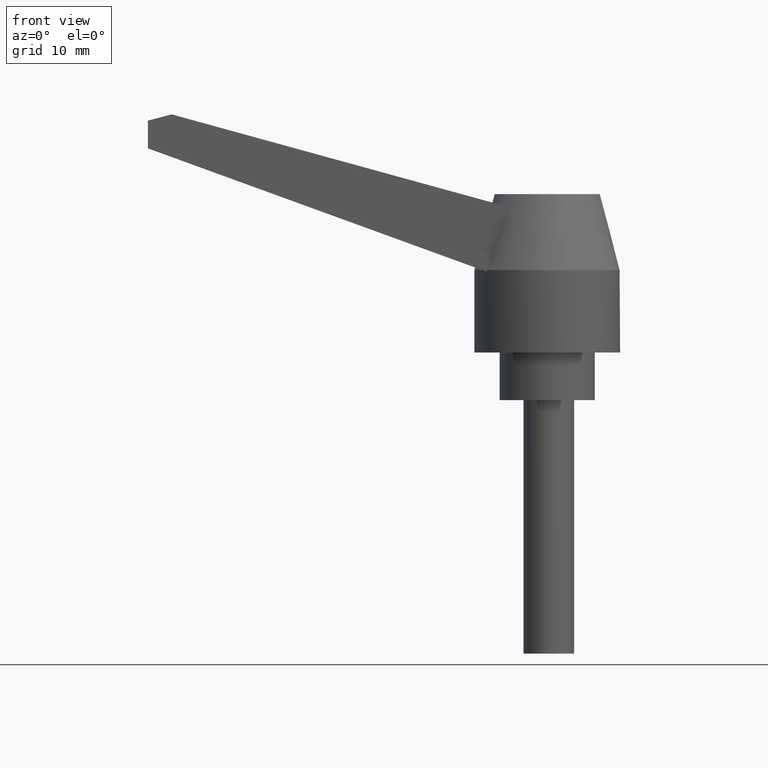
[diagram: clean part render]
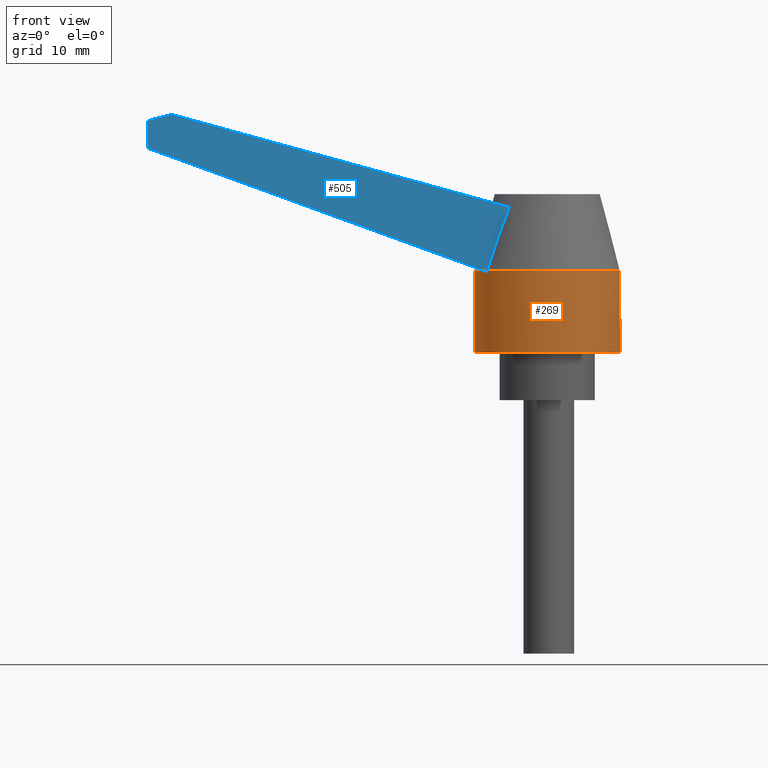
[diagram: same view with the hole feature highlighted: cylindrical wall and planar end face, labeled with their STEP entity ids]
A machine part, front view. The highlighted faces form one hole feature of diameter 23 mm: the cylindrical wall (entity #269, orange) and its adjacent planar end face (entity #505, blue) — they share a circular edge in the B-rep.
Wall:
#167=CARTESIAN_POINT('',(-11.500000000000011,-4.289359E-016,7.500000000000028));
#168=VERTEX_POINT('',#167);
#169=CARTESIAN_POINT('',(11.500000000000000,1.735999E-015,7.499999999999976));
#170=VERTEX_POINT('',#169);
#171=CARTESIAN_POINT('',(0.0,4.592425E-016,7.500000000000000));
#172=DIRECTION('',(-2.068442E-015,-1.072679E-015,-1.0));
#173=DIRECTION('',(-1.0,-1.110223E-016,2.068442E-015));
#174=AXIS2_PLACEMENT_3D('',#171,#172,#173);
#175=CIRCLE('',#174,11.500000000000000);
#176=EDGE_CURVE('',#168,#170,#175,.T.);
#178=CARTESIAN_POINT('',(0.0,4.592425E-016,7.500000000000000));
#179=DIRECTION('',(-2.068442E-015,-1.072679E-015,-1.0));
#180=DIRECTION('',(-1.0,-1.110223E-016,2.068442E-015));
#181=AXIS2_PLACEMENT_3D('',#178,#179,#180);
#182=CIRCLE('',#181,11.500000000000000);
#183=EDGE_CURVE('',#170,#168,#182,.T.);
#192=CARTESIAN_POINT('',(0.0,4.592425E-016,7.500000000000000));
#193=DIRECTION('',(-2.068442E-015,-1.072679E-015,-1.0));
#194=DIRECTION('',(-1.0,-1.110223E-016,2.068442E-015));
#195=AXIS2_PLACEMENT_3D('',#192,#193,#194);
#196=CYLINDRICAL_SURFACE('',#195,11.500000000000000);
#197=ORIENTED_EDGE('',*,*,#183,.F.);
#198=ORIENTED_EDGE('',*,*,#176,.F.);
#199=CARTESIAN_POINT('',(-11.500000000000011,3.670845E-016,20.500000000000028));
#200=VERTEX_POINT('',#199);
#201=CARTESIAN_POINT('',(-11.500000000000011,-4.289359E-016,7.500000000000028));
#202=DIRECTION('',(0.0,0.0,1.0));
#203=VECTOR('',#202,13.0);
#204=LINE('',#201,#203);
#205=EDGE_CURVE('',#168,#200,#204,.T.);
#206=ORIENTED_EDGE('',*,*,#205,.T.);
#207=CARTESIAN_POINT('',(-10.208130721623393,5.295664941274871,20.500000000000014));
#208=VERTEX_POINT('',#207);
#209=CARTESIAN_POINT('',(1.205831E-013,4.144963E-014,20.500000000000000));
#210=DIRECTION('',(-2.068442E-015,-1.072679E-015,-1.0));
#211=DIRECTION('',(-1.0,-1.110223E-016,2.068442E-015));
#212=AXIS2_PLACEMENT_3D('',#209,#210,#211);
#213=CIRCLE('',#212,11.500000000000028);
#214=EDGE_CURVE('',#200,#208,#213,.T.);
#215=ORIENTED_EDGE('',*,*,#214,.T.);
#216=CARTESIAN_POINT('',(-9.486832980505104,6.499999999999932,20.237469092189500));
#217=VERTEX_POINT('',#216);
#218=CARTESIAN_POINT('',(0.0,9.154488E-016,16.784544269830704));
#219=DIRECTION('',(-0.342020143325670,-1.045960E-015,-0.939692620785908));
#220=DIRECTION('',(-0.939692620785908,2.429873E-016,0.342020143325670));
#221=AXIS2_PLACEMENT_3D('',#218,#219,#220);
#222=ELLIPSE('',#221,12.238044383472985,11.500000000000000);
#223=EDGE_CURVE('',#208,#217,#222,.T.);
#224=ORIENTED_EDGE('',*,*,#223,.T.);
#225=CARTESIAN_POINT('',(-9.486832980505144,6.499999999999973,20.500000000000014));
#226=VERTEX_POINT('',#225);
#227=CARTESIAN_POINT('',(-9.486832980505117,6.499999999999986,20.237469092189500));
#228=DIRECTION('',(0.0,0.0,1.0));
#229=VECTOR('',#228,0.262530907810515);
#230=LINE('',#227,#229);
#231=EDGE_CURVE('',#217,#226,#230,.T.);
#232=ORIENTED_EDGE('',*,*,#231,.T.);
#233=CARTESIAN_POINT('',(-9.486832980505144,-6.500000000000132,20.500000000000028));
#234=VERTEX_POINT('',#233);
#235=CARTESIAN_POINT('',(1.205831E-013,4.144963E-014,20.500000000000000));
#236=DIRECTION('',(-2.068442E-015,-1.072679E-015,-1.0));
#237=DIRECTION('',(-1.0,-1.110223E-016,2.068442E-015));
#238=AXIS2_PLACEMENT_3D('',#235,#236,#237);
#239=CIRCLE('',#238,11.500000000000028);
#240=EDGE_CURVE('',#226,#234,#239,.T.);
#241=ORIENTED_EDGE('',*,*,#240,.T.);
#242=CARTESIAN_POINT('',(-9.486832980505023,-6.500000000000092,20.237469092189514));
#243=VERTEX_POINT('',#242);
#244=CARTESIAN_POINT('',(-9.486832980505117,-6.500000000000119,20.237469092189514));
#245=DIRECTION('',(0.0,0.0,1.0));
#246=VECTOR('',#245,0.262530907810515);
#247=LINE('',#244,#246);
#248=EDGE_CURVE('',#243,#234,#247,.T.);
#249=ORIENTED_EDGE('',*,*,#248,.F.);
#250=CARTESIAN_POINT('',(-10.208130721623391,-5.295664941275032,20.500000000000028));
#251=VERTEX_POINT('',#250);
#252=CARTESIAN_POINT('',(0.0,9.154488E-016,16.784544269830704));
#253=DIRECTION('',(-0.342020143325670,-1.045960E-015,-0.939692620785908));
#254=DIRECTION('',(-0.939692620785908,2.429873E-016,0.342020143325670));
#255=AXIS2_PLACEMENT_3D('',#252,#253,#254);
#256=ELLIPSE('',#255,12.238044383472985,11.500000000000000);
#257=EDGE_CURVE('',#243,#251,#256,.T.);
#258=ORIENTED_EDGE('',*,*,#257,.T.);
#259=CARTESIAN_POINT('',(1.205831E-013,4.144963E-014,20.500000000000000));
#260=DIRECTION('',(-2.068442E-015,-1.072679E-015,-1.0));
#261=DIRECTION('',(-1.0,-1.110223E-016,2.068442E-015));
#262=AXIS2_PLACEMENT_3D('',#259,#260,#261);
#263=CIRCLE('',#262,11.500000000000028);
#264=EDGE_CURVE('',#251,#200,#263,.T.);
#265=ORIENTED_EDGE('',*,*,#264,.T.);
#266=ORIENTED_EDGE('',*,*,#205,.F.);
#267=EDGE_LOOP('',(#197,#198,#206,#215,#224,#232,#241,#249,#258,#265,#266));
#268=FACE_OUTER_BOUND('',#267,.T.);
#269=ADVANCED_FACE('',(#268),#196,.T.);
End face:
#233=CARTESIAN_POINT('',(-9.486832980505144,-6.500000000000132,20.500000000000028));
#234=VERTEX_POINT('',#233);
#242=CARTESIAN_POINT('',(-9.486832980505023,-6.500000000000092,20.237469092189514));
#243=VERTEX_POINT('',#242);
#244=CARTESIAN_POINT('',(-9.486832980505117,-6.500000000000119,20.237469092189514));
#245=DIRECTION('',(0.0,0.0,1.0));
#246=VECTOR('',#245,0.262530907810515);
#247=LINE('',#244,#246);
#248=EDGE_CURVE('',#243,#234,#247,.T.);
#304=CARTESIAN_POINT('',(-5.989480691774037,-6.499999999995148,30.431840536688341));
#305=VERTEX_POINT('',#304);
#316=CARTESIAN_POINT('',(-9.486832980505144,-6.500000000000132,20.500000000000028));
#317=CARTESIAN_POINT('',(-8.924129740569736,-6.500000000000132,22.232408786132851));
#318=CARTESIAN_POINT('',(-8.107705780670552,-6.499999999999328,24.680204736521603));
#319=CARTESIAN_POINT('',(-6.928262411578024,-6.500000000001096,27.986617058895817));
#320=CARTESIAN_POINT('',(-6.331554087225999,-6.499999999997559,29.566744910999788));
#321=CARTESIAN_POINT('',(-5.989480691774358,-6.499999999997559,30.431840536687346));
#322=B_SPLINE_CURVE_WITH_KNOTS('',3,(#316,#317,#318,#319,#320,#321),.UNSPECIFIED.,.F.,.U.,(4,1,1,4),(0.0,5.464623178458854,7.740353972626606,10.531241818890766),.UNSPECIFIED.);
#323=EDGE_CURVE('',#234,#305,#322,.T.);
#358=CARTESIAN_POINT('',(-62.999999999999986,-6.500000000000179,39.714669028601548));
#359=VERTEX_POINT('',#358);
#398=CARTESIAN_POINT('',(-9.486832980505103,-6.500000000000130,20.237469092189521));
#399=DIRECTION('',(-0.939692620785908,2.339465E-016,0.342020143325670));
#400=VECTOR('',#399,56.947522876937526);
#401=LINE('',#398,#400);
#402=EDGE_CURVE('',#243,#359,#401,.T.);
#412=CARTESIAN_POINT('',(-62.999999999999986,-6.500000000000179,44.100006688642210));
#413=VERTEX_POINT('',#412);
#414=CARTESIAN_POINT('',(-62.999999999999986,-6.500000000000179,39.714669028601548));
#415=DIRECTION('',(0.0,0.0,1.0));
#416=VECTOR('',#415,4.385337660040676);
#417=LINE('',#414,#416);
#418=EDGE_CURVE('',#359,#413,#417,.T.);
#443=CARTESIAN_POINT('',(-59.246615726999266,-6.500000000000132,45.079233898757010));
#444=VERTEX_POINT('',#443);
#445=CARTESIAN_POINT('',(-62.999999999999986,-6.500000000000179,44.100006688642210));
#446=DIRECTION('',(0.967612015328632,2.289699E-016,0.252442048382721));
#447=VECTOR('',#446,3.879017843454473);
#448=LINE('',#445,#447);
#449=EDGE_CURVE('',#413,#444,#448,.T.);
#474=CARTESIAN_POINT('',(-59.246615726999266,-6.500000000000132,45.079233898757010));
#475=DIRECTION('',(0.964197610473013,-1.286407E-016,-0.265184780781500));
#476=VECTOR('',#475,55.234668139335724);
#477=LINE('',#474,#476);
#478=EDGE_CURVE('',#444,#305,#477,.T.);
#492=CARTESIAN_POINT('',(6.301868280225002,-6.500000000000092,13.953207026651114));
#493=DIRECTION('',(0.0,1.0,0.0));
#494=DIRECTION('',(-1.0,0.0,0.0));
#495=AXIS2_PLACEMENT_3D('',#492,#493,#494);
#496=PLANE('',#495);
#497=ORIENTED_EDGE('',*,*,#402,.F.);
#498=ORIENTED_EDGE('',*,*,#248,.T.);
#499=ORIENTED_EDGE('',*,*,#323,.T.);
#500=ORIENTED_EDGE('',*,*,#478,.F.);
#501=ORIENTED_EDGE('',*,*,#449,.F.);
#502=ORIENTED_EDGE('',*,*,#418,.F.);
#503=EDGE_LOOP('',(#497,#498,#499,#500,#501,#502));
#504=FACE_OUTER_BOUND('',#503,.T.);
#505=ADVANCED_FACE('',(#504),#496,.F.);